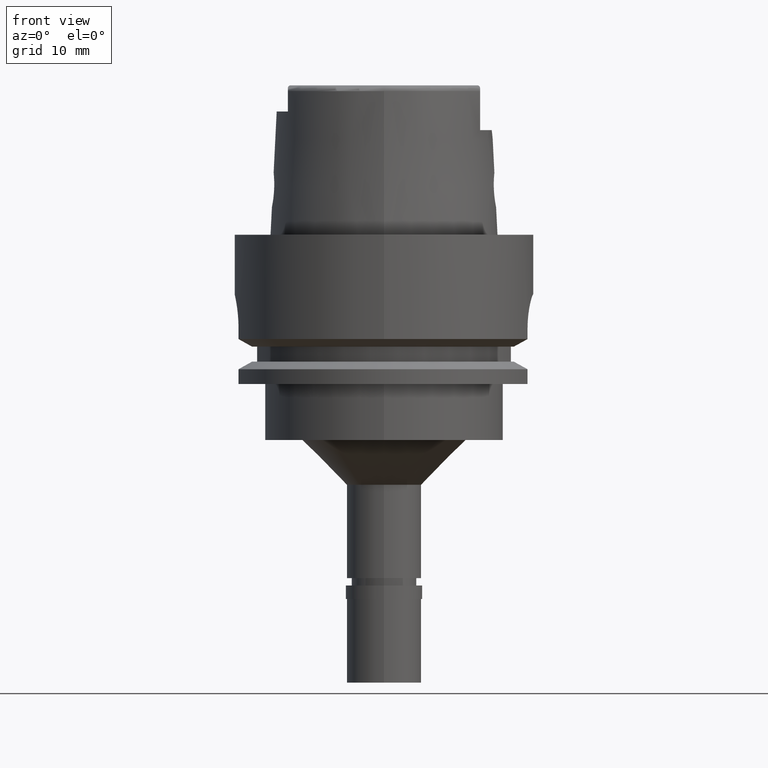
[diagram: clean part render]
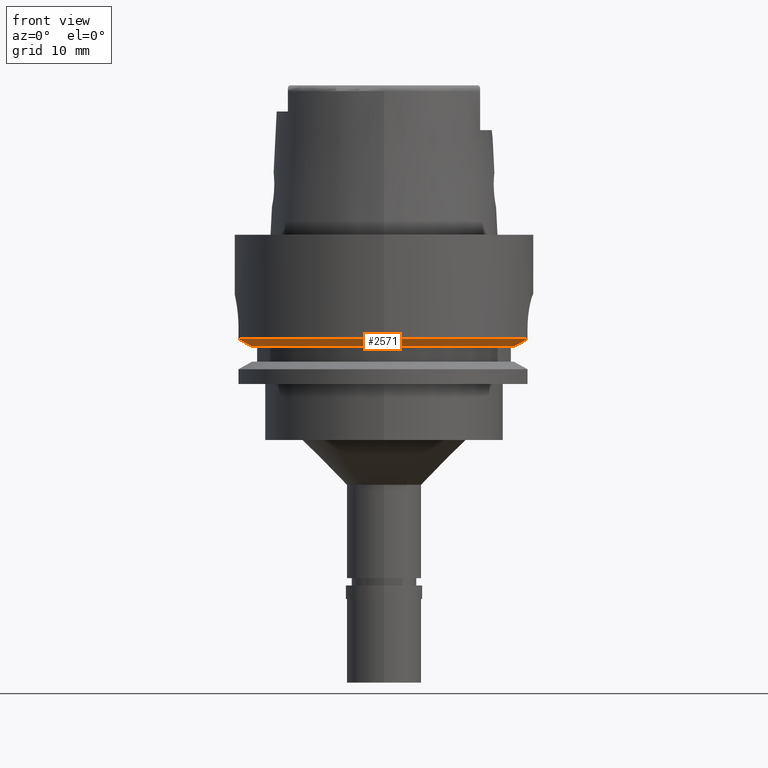
[diagram: same view with one face highlighted and labeled with its STEP entity id]
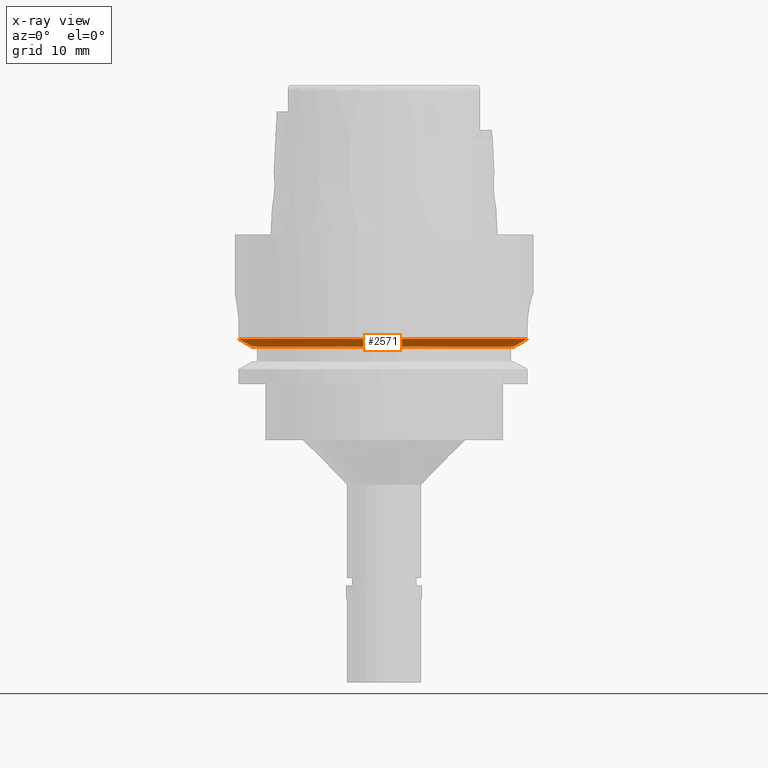
[diagram: x-ray of the same camera — body ghosted, the highlighted face saturated]
A machine part, front view. The second image highlights one B-rep face of the part: STEP entity #2571.
The next image is the same camera in x-ray: the body ghosted, the highlighted face saturated — about 0% of this face is hidden behind the body in this view.
In plain terms, the highlighted conical surface has half-angle 60 deg.
Its self-contained STEP definition (entity closure, byte-faithful):
#184 = CARTESIAN_POINT ( 'NONE',  ( 0.0000000000000000000, 0.0000000000000000000, -13.97927405783999966 ) ) ;
#212 = DIRECTION ( 'NONE',  ( 0.0000000000000000000, 1.000000000000000000, 0.0000000000000000000 ) ) ;
#301 = EDGE_CURVE ( 'NONE', #2776, #2844, #3549, .T. ) ;
#459 = CARTESIAN_POINT ( 'NONE',  ( 0.0000000000000000000, 0.0000000000000000000, -13.97927405783999966 ) ) ;
#466 = DIRECTION ( 'NONE',  ( 0.0000000000000000000, -1.000000000000000000, 0.0000000000000000000 ) ) ;
#653 = CARTESIAN_POINT ( 'NONE',  ( 0.0000000000000000000, -20.00000000000000000, -13.97927405783999966 ) ) ;
#865 = ORIENTED_EDGE ( 'NONE', *, *, #4632, .F. ) ;
#929 = EDGE_CURVE ( 'NONE', #1028, #4639, #3295, .T. ) ;
#1028 = VERTEX_POINT ( 'NONE', #3367 ) ;
#1108 = CARTESIAN_POINT ( 'NONE',  ( -18.88128293145999947, -4.500000000000000000, -14.31992751062000124 ) ) ;
#1139 = CARTESIAN_POINT ( 'NONE',  ( -19.48717526991000071, -4.499999999998999911, -13.97927405783999966 ) ) ;
#1165 = ORIENTED_EDGE ( 'NONE', *, *, #4490, .F. ) ;
#1361 = AXIS2_PLACEMENT_3D ( 'NONE', #4134, #1681, #466 ) ;
#1469 = FACE_OUTER_BOUND ( 'NONE', #2396, .T. ) ;
#1681 = DIRECTION ( 'NONE',  ( 0.0000000000000000000, 0.0000000000000000000, 1.000000000000000000 ) ) ;
#1714 = CARTESIAN_POINT ( 'NONE',  ( 18.60090291040999944, -5.499999979801000194, -14.32757050055999848 ) ) ;
#1915 = CARTESIAN_POINT ( 'NONE',  ( -17.66798451012000370, -4.500000000000000000, -15.00000000000000000 ) ) ;
#1922 = ORIENTED_EDGE ( 'NONE', *, *, #929, .T. ) ;
#2039 = CARTESIAN_POINT ( 'NONE',  ( 17.98551100479999931, -5.500000224983999431, -14.66782428974999952 ) ) ;
#2224 = DIRECTION ( 'NONE',  ( 0.0000000000000000000, 0.0000000000000000000, 1.000000000000000000 ) ) ;
#2299 = B_SPLINE_CURVE_WITH_KNOTS ( 'NONE', 3,
 ( #1915, #3510, #4756, #1108, #2719, #1139 ),
 .UNSPECIFIED., .F., .F.,
 ( 4, 1, 1, 4 ),
 ( 0.0000000000000000000, 0.3333333333333000081, 0.6666666666667000474, 1.000000000000000000 ),
 .UNSPECIFIED. ) ;
#2396 = EDGE_LOOP ( 'NONE', ( #1165, #1922, #865, #4287, #4564 ) ) ;
#2481 = CONICAL_SURFACE ( 'NONE', #5039, 19.11602540378000015, 1.047197551196400456 ) ;
#2571 = ADVANCED_FACE ( 'NONE', ( #1469 ), #2481, .T. ) ;
#2574 = EDGE_CURVE ( 'NONE', #2844, #4571, #3639, .T. ) ;
#2584 = DIRECTION ( 'NONE',  ( 0.0000000000000000000, 0.0000000000000000000, 1.000000000000000000 ) ) ;
#2719 = CARTESIAN_POINT ( 'NONE',  ( -19.28525784598000214, -4.499999999998999911, -14.09286195644000017 ) ) ;
#2776 = VERTEX_POINT ( 'NONE', #4406 ) ;
#2844 = VERTEX_POINT ( 'NONE', #653 ) ;
#2896 = CARTESIAN_POINT ( 'NONE',  ( 17.38268324078999783, -5.500000000000000000, -15.00000000000000000 ) ) ;
#3209 = AXIS2_PLACEMENT_3D ( 'NONE', #459, #4609, #3305 ) ;
#3295 = CIRCLE ( 'NONE', #1361, 18.23205080757000118 ) ;
#3305 = DIRECTION ( 'NONE',  ( -0.9743587634952779464, -0.2249999999998949785, 0.0000000000000000000 ) ) ;
#3320 = CARTESIAN_POINT ( 'NONE',  ( 17.38268324078999783, -5.500000000000000000, -15.00000000000000000 ) ) ;
#3367 = CARTESIAN_POINT ( 'NONE',  ( -17.66798451012000370, -4.500000000000000000, -15.00000000000000000 ) ) ;
#3485 = AXIS2_PLACEMENT_3D ( 'NONE', #184, #2224, #5067 ) ;
#3510 = CARTESIAN_POINT ( 'NONE',  ( -17.87034388036000010, -4.500000000000000000, -14.88678233879000068 ) ) ;
#3549 = CIRCLE ( 'NONE', #3209, 20.00000000000000355 ) ;
#3610 = CARTESIAN_POINT ( 'NONE',  ( 17.58242975974000188, -5.499999488503999778, -14.89005282803999819 ) ) ;
#3639 = CIRCLE ( 'NONE', #3485, 20.00000000000000000 ) ;
#4053 = CARTESIAN_POINT ( 'NONE',  ( 19.01835761626000121, -5.499999897141999661, -14.09613633472999972 ) ) ;
#4134 = CARTESIAN_POINT ( 'NONE',  ( 0.0000000000000000000, 0.0000000000000000000, -15.00000000000000000 ) ) ;
#4287 = ORIENTED_EDGE ( 'NONE', *, *, #2574, .F. ) ;
#4406 = CARTESIAN_POINT ( 'NONE',  ( -19.48717526991000071, -4.499999999998999911, -13.97927405783999966 ) ) ;
#4490 = EDGE_CURVE ( 'NONE', #1028, #2776, #2299, .T. ) ;
#4563 = CARTESIAN_POINT ( 'NONE',  ( 19.22888452303000051, -5.499999999998999911, -13.97927405783999966 ) ) ;
#4564 = ORIENTED_EDGE ( 'NONE', *, *, #301, .F. ) ;
#4571 = VERTEX_POINT ( 'NONE', #4563 ) ;
#4609 = DIRECTION ( 'NONE',  ( 0.0000000000000000000, 0.0000000000000000000, 1.000000000000000000 ) ) ;
#4632 = EDGE_CURVE ( 'NONE', #4571, #4639, #5020, .T. ) ;
#4639 = VERTEX_POINT ( 'NONE', #3320 ) ;
#4646 = CARTESIAN_POINT ( 'NONE',  ( 0.0000000000000000000, 0.0000000000000000000, -14.48963702891999894 ) ) ;
#4756 = CARTESIAN_POINT ( 'NONE',  ( -18.27489697170000227, -4.500000000000000000, -14.66019060122999917 ) ) ;
#5020 = B_SPLINE_CURVE_WITH_KNOTS ( 'NONE', 3,
 ( #5251, #4053, #1714, #2039, #3610, #2896 ),
 .UNSPECIFIED., .F., .F.,
 ( 4, 1, 1, 4 ),
 ( 0.0000000000000000000, 0.3333333333333000081, 0.6666666666667000474, 1.000000000000000000 ),
 .UNSPECIFIED. ) ;
#5039 = AXIS2_PLACEMENT_3D ( 'NONE', #4646, #2584, #212 ) ;
#5067 = DIRECTION ( 'NONE',  ( 0.0000000000000000000, -1.000000000000000000, 0.0000000000000000000 ) ) ;
#5251 = CARTESIAN_POINT ( 'NONE',  ( 19.22888452303000051, -5.499999999998999911, -13.97927405783999966 ) ) ;